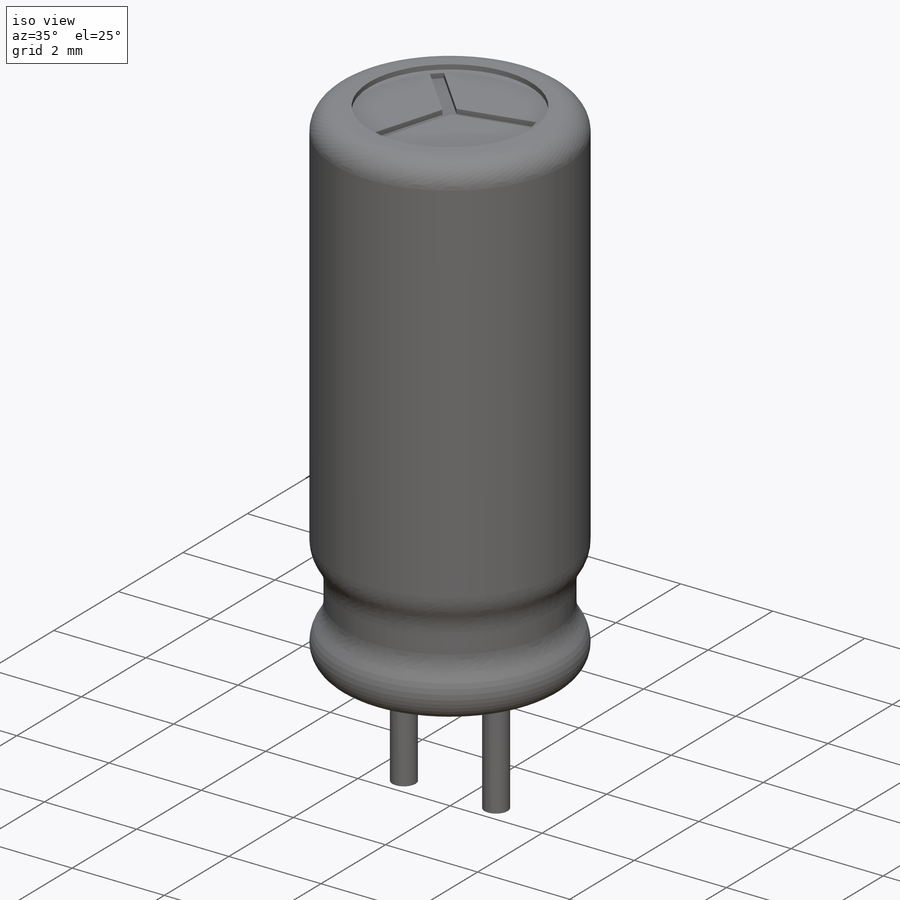
[diagram: iso view]
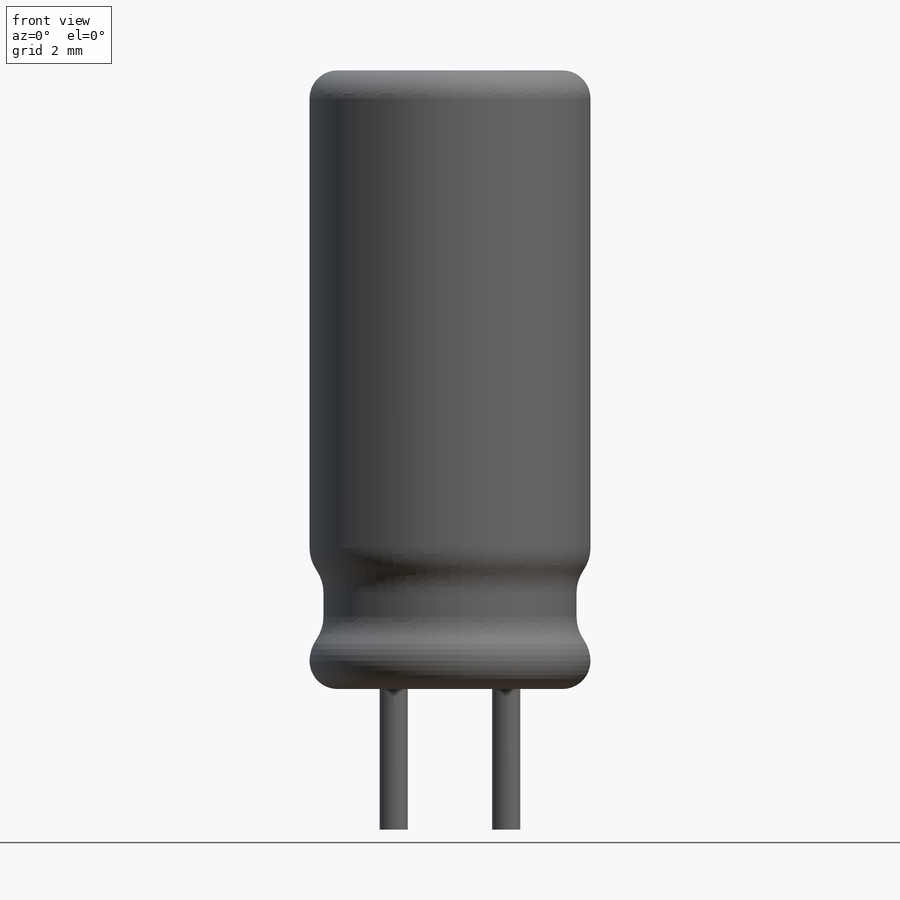
[diagram: front view]
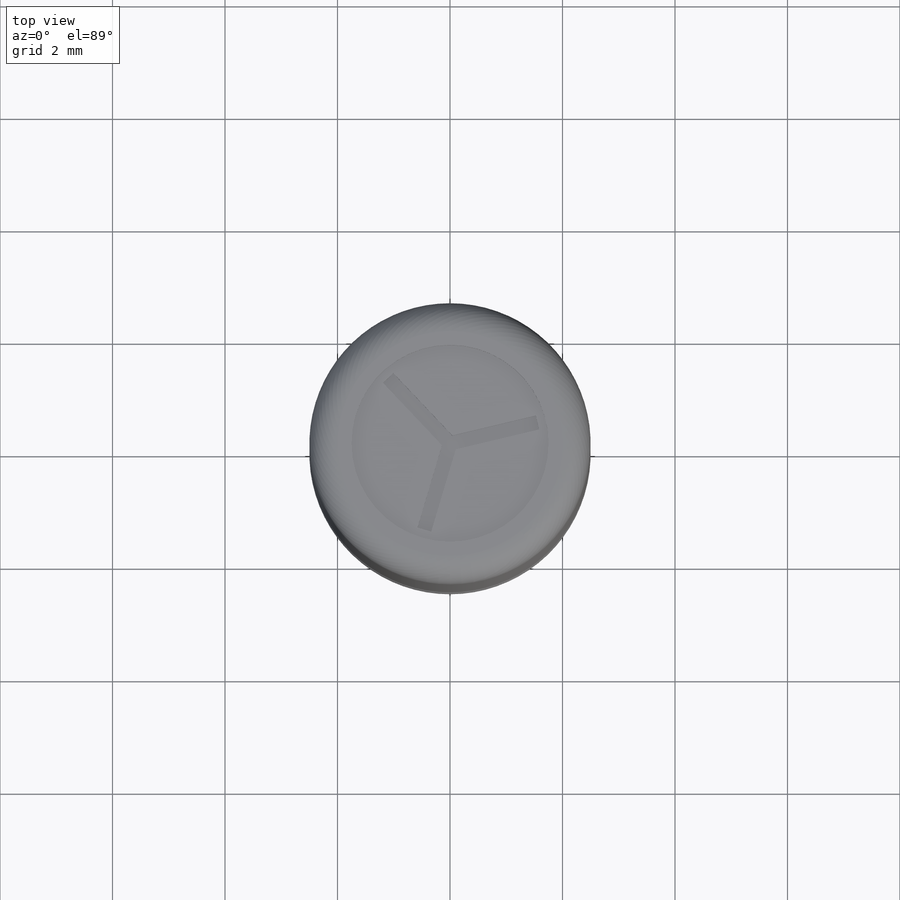
[diagram: top view]
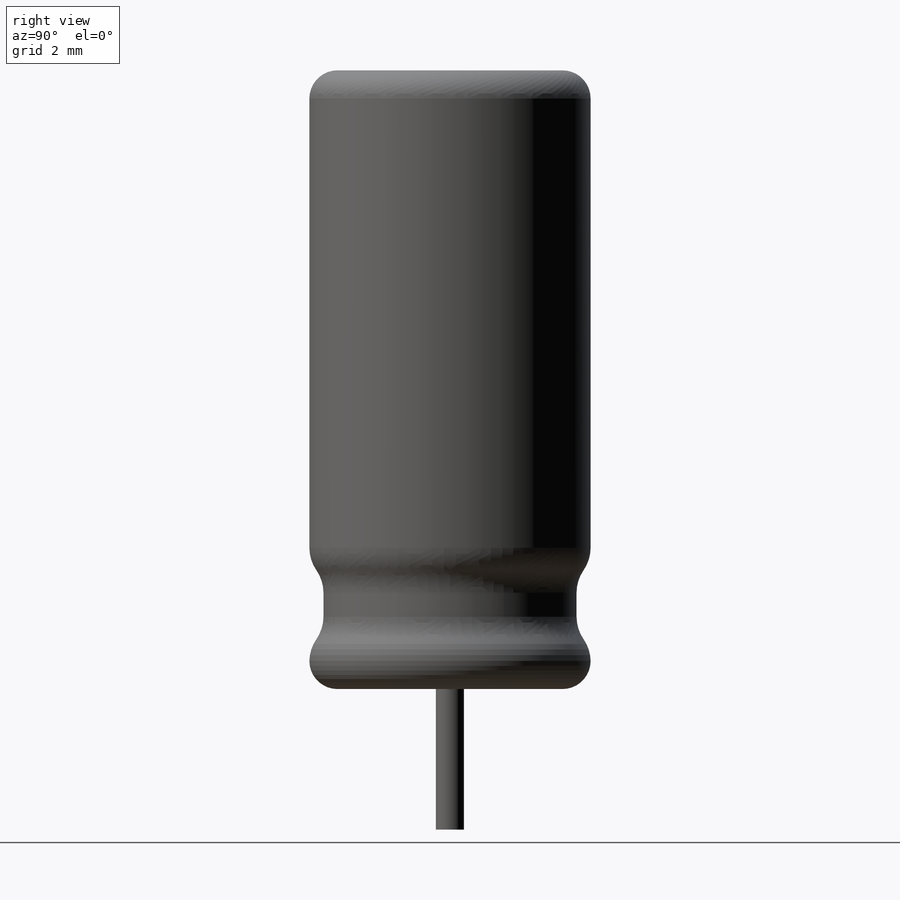
[diagram: right view]
SOLIDWORKS PART (.sldprt)
format: sldprt  version: not decoded by parser v0  size: 323,584 bytes
history: native  units: mm
features: sketch x8, fillet x3, extrude x2, cut_extrude x2, plane x2, material x1 (+12 scaffold rows collapsed)
feature tree (30):
  scaffold x12  (default folders/planes/origin — collapsed)
  material  "Material <not specified>"
  sketch  "Sketch1"  dims[D1=4.0mm]
  extrude  "Extrude1"  Depth=11mm
  sketch  "Sketch2"  dims[D1=3.5mm]
  cut_extrude  "Cut-Extrude1"  Depth=0.1mm
  fillet  "Fillet1"  Radius=0.5mm
  plane  "Plane1"  Offset=1.5mm
  sketch  "Sketch3"  dims[D1=3.75mm]
  cut_extrude  "Cut-Extrude2"  Depth=0.75mm
  fillet  "Fillet2"  Radius=0.7mm
  fillet  "Fillet3"  Radius=0.7mm
  sketch  "Sketch4"  dims[c1.D1=1.6mm c1.D2=1.6mm c1.D3=1.6mm c1.D4=~1.781209mm c2.D4=120.0deg c2.D5=~1.845007mm c3.D5=120.0deg c3.D1=0.1mm c4.D5=0.254mm c4.D6=1.0mm c4.D7=5.0mm]
  sketch  "Sketch4<3>"  dims[D1=0.1mm D5=0.254mm D6=1.0mm D7=5.0mm]
  sketch  "Sketch4<4>"  dims[D1=0.1mm D5=0.254mm D6=1.0mm D7=5.0mm]
  sketch  "Sketch5"  dims[D1=0.5mm D2=2.0mm]
  extrude  "Extrude2"  Depth=2.5mm
  plane  "Board Plane"  Offset=0.5mm
  sketch  "Component_Outline"
decode coverage: 14 of 15 modeling features carry decoded parameters
note: ~ marks probable driven/reference dimensions
note: suppression state not decoded; provenance and decode notes live in map.json
